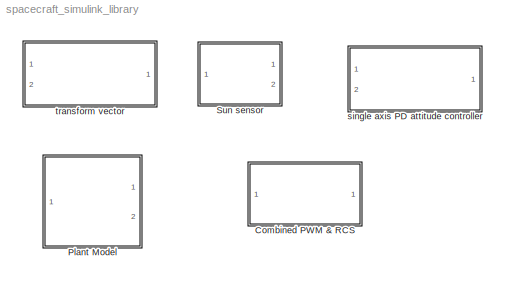
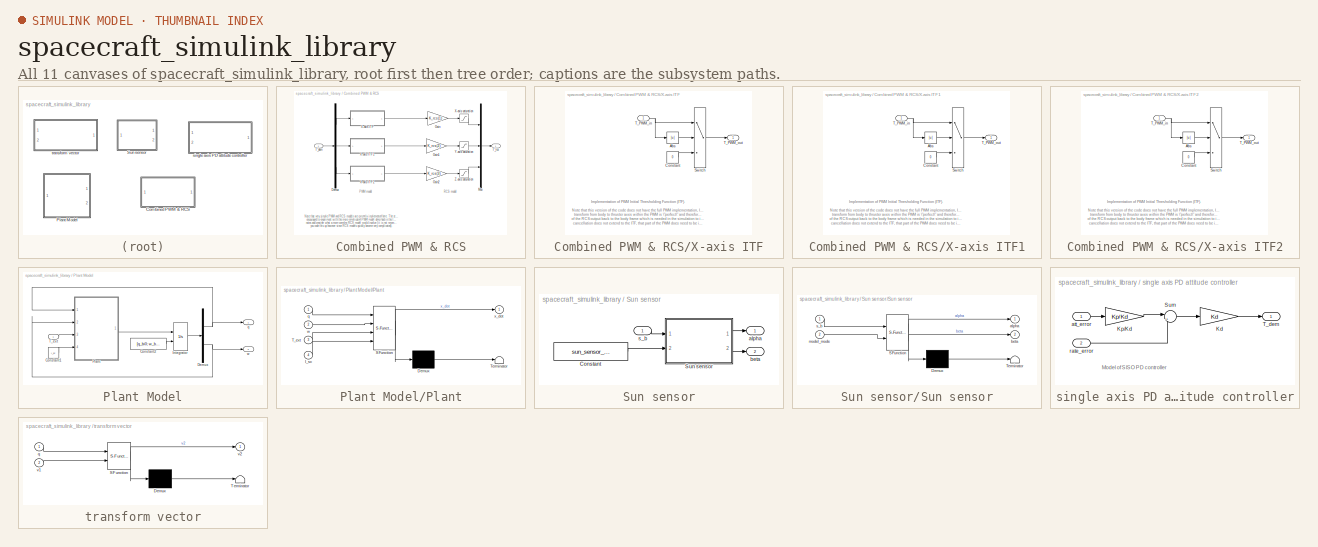
[diagram: thumbnail index - all 11 canvases of the model, root first then tree order]
MODEL spacecraft_simulink_library
KIND library
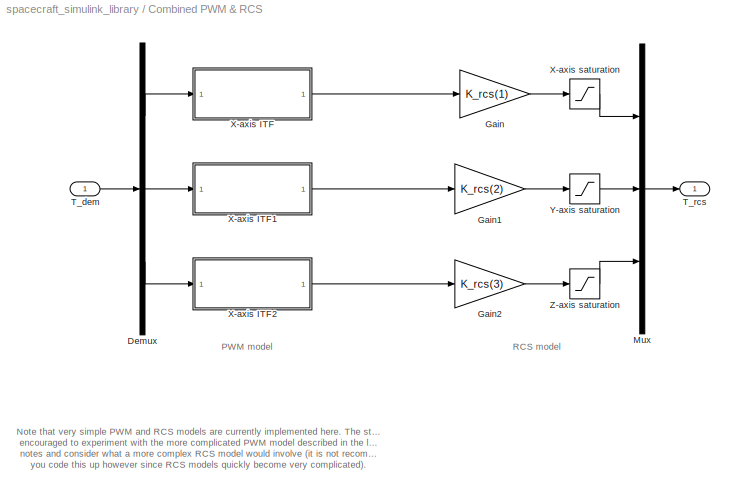
BLOCK [SubSystem] Combined PWM & RCS
  FunctionWithSeparateData = off
  MaskCallbackString = ||
  MaskEnableString = on,on,on
  MaskIconFrame = on
  MaskIconOpaque = on
  MaskIconRotate = none
  MaskIconUnits = autoscale
  MaskPromptString = Torque deadbands [X Y Z] [Nm]|Torque saturation [X Y Z] [Nm]|RCS gain [X Y Z]
  MaskStyleString = edit,edit,edit
  MaskTabNameString = ,,
  MaskToolTipString = on,on,on
  MaskTunableValueString = on,on,on
  MaskValueString = [0 0 0]|Trcs_saturation|[Krcs Krcs Krcs]
  MaskVarAliasString = ,,
  MaskVariables = T_deadband=@1;T_saturation=@2;K_rcs=@3;
  MaskVisibilityString = on,on,on
  MinAlgLoopOccurrences = off
  Ports = [1, 1]
  RTWSystemCode = Auto
BLOCK [Demux] Combined PWM & RCS/Demux
  Outputs = 3
  Ports = [1, 3]
BLOCK [Gain] Combined PWM & RCS/Gain
  Gain = K_rcs(1)
  OutDataType = sfix(16)
  OutScaling = 2^0
  ParameterDataType = sfix(16)
  ParameterScaling = 2^0
BLOCK [Gain] Combined PWM & RCS/Gain1
  Gain = K_rcs(2)
  OutDataType = sfix(16)
  OutScaling = 2^0
  ParameterDataType = sfix(16)
  ParameterScaling = 2^0
BLOCK [Gain] Combined PWM & RCS/Gain2
  Gain = K_rcs(3)
  OutDataType = sfix(16)
  OutScaling = 2^0
  ParameterDataType = sfix(16)
  ParameterScaling = 2^0
BLOCK [Mux] Combined PWM & RCS/Mux
  DisplayOption = bar
  Inputs = 3
  Ports = [3, 1]
BLOCK [Inport] Combined PWM & RCS/T_dem
  IconDisplay = Port number
  OutDataType = sfix(16)
  OutScaling = 2^0
BLOCK [Outport] Combined PWM & RCS/T_rcs
  IconDisplay = Port number
BLOCK [SubSystem] Combined PWM & RCS/X-axis ITF
  FunctionWithSeparateData = off
  MaskEnableString = on
  MaskIconFrame = on
  MaskIconOpaque = on
  MaskIconRotate = none
  MaskIconUnits = autoscale
  MaskPromptString = Torque deadband [Nm]
  MaskStyleString = edit
  MaskToolTipString = on
  MaskTunableValueString = on
  MaskValueString = T_deadband(1)
  MaskVariables = T_db=@1;
  MaskVisibilityString = on
  MinAlgLoopOccurrences = off
  Ports = [1, 1]
  RTWSystemCode = Auto
BLOCK [Abs] Combined PWM & RCS/X-axis ITF/Abs
BLOCK [Constant] Combined PWM & RCS/X-axis ITF/Constant
  OutDataType = sfix(16)
  OutScaling = 2^0
  Value = 0
BLOCK [Switch] Combined PWM & RCS/X-axis ITF/Switch
  InputSameDT = off
  Threshold = T_db
BLOCK [Inport] Combined PWM & RCS/X-axis ITF/T_PWM_in
  IconDisplay = Port number
  OutDataType = sfix(16)
  OutScaling = 2^0
BLOCK [Outport] Combined PWM & RCS/X-axis ITF/T_PWM_out
  IconDisplay = Port number
BLOCK [SubSystem] Combined PWM & RCS/X-axis ITF1
  FunctionWithSeparateData = off
  MaskEnableString = on
  MaskIconFrame = on
  MaskIconOpaque = on
  MaskIconRotate = none
  MaskIconUnits = autoscale
  MaskPromptString = Torque deadband [Nm]
  MaskStyleString = edit
  MaskToolTipString = on
  MaskTunableValueString = on
  MaskValueString = T_deadband(2)
  MaskVariables = T_db=@1;
  MaskVisibilityString = on
  MinAlgLoopOccurrences = off
  Ports = [1, 1]
  RTWSystemCode = Auto
BLOCK [Abs] Combined PWM & RCS/X-axis ITF1/Abs
BLOCK [Constant] Combined PWM & RCS/X-axis ITF1/Constant
  OutDataType = sfix(16)
  OutScaling = 2^0
  Value = 0
BLOCK [Switch] Combined PWM & RCS/X-axis ITF1/Switch
  InputSameDT = off
  Threshold = T_db
BLOCK [Inport] Combined PWM & RCS/X-axis ITF1/T_PWM_in
  IconDisplay = Port number
  OutDataType = sfix(16)
  OutScaling = 2^0
BLOCK [Outport] Combined PWM & RCS/X-axis ITF1/T_PWM_out
  IconDisplay = Port number
BLOCK [SubSystem] Combined PWM & RCS/X-axis ITF2
  FunctionWithSeparateData = off
  MaskEnableString = on
  MaskIconFrame = on
  MaskIconOpaque = on
  MaskIconRotate = none
  MaskIconUnits = autoscale
  MaskPromptString = Torque deadband [Nm]
  MaskStyleString = edit
  MaskToolTipString = on
  MaskTunableValueString = on
  MaskValueString = T_deadband(3)
  MaskVariables = T_db=@1;
  MaskVisibilityString = on
  MinAlgLoopOccurrences = off
  Ports = [1, 1]
  RTWSystemCode = Auto
BLOCK [Abs] Combined PWM & RCS/X-axis ITF2/Abs
BLOCK [Constant] Combined PWM & RCS/X-axis ITF2/Constant
  OutDataType = sfix(16)
  OutScaling = 2^0
  Value = 0
BLOCK [Switch] Combined PWM & RCS/X-axis ITF2/Switch
  InputSameDT = off
  Threshold = T_db
BLOCK [Inport] Combined PWM & RCS/X-axis ITF2/T_PWM_in
  IconDisplay = Port number
  OutDataType = sfix(16)
  OutScaling = 2^0
BLOCK [Outport] Combined PWM & RCS/X-axis ITF2/T_PWM_out
  IconDisplay = Port number
BLOCK [Saturate] Combined PWM & RCS/X-axis saturation
  LowerLimit = -T_saturation(1)
  UpperLimit = +T_saturation(1)
BLOCK [Saturate] Combined PWM & RCS/Y-axis saturation
  LowerLimit = -T_saturation(2)
  UpperLimit = T_saturation(2)
BLOCK [Saturate] Combined PWM & RCS/Z-axis saturation
  LowerLimit = -T_saturation(3)
  UpperLimit = T_saturation(3)
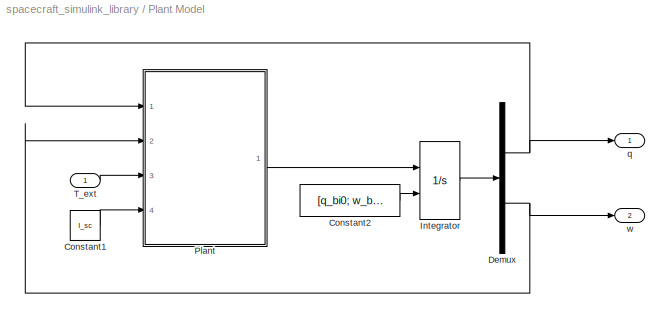
BLOCK [SubSystem] Plant Model
  FunctionWithSeparateData = off
  MinAlgLoopOccurrences = off
  Ports = [1, 2]
  RTWSystemCode = Auto
BLOCK [Constant] Plant Model/Constant1
  OutDataType = sfix(16)
  OutScaling = 2^0
  Value = I_sc
BLOCK [Constant] Plant Model/Constant2
  OutDataType = sfix(16)
  OutScaling = 2^0
  Value = [q_bi0; w_bi0]
BLOCK [Demux] Plant Model/Demux
  DisplayOption = bar
  Outputs = [4 3]
  Ports = [1, 2]
BLOCK [Integrator] Plant Model/Integrator
  InitialConditionSource = external
  Ports = [2, 1]
BLOCK [SubSystem] Plant Model/Plant
  FunctionWithSeparateData = off
  MaskDescription = Embedded MATLAB block
  MaskDisplay = disp('fcn');
  MaskIconFrame = on
  MaskIconOpaque = off
  MaskIconRotate = none
  MaskIconUnits = autoscale
  MaskSelfModifiable = on
  MaskType = Stateflow
  MinAlgLoopOccurrences = off
  PermitHierarchicalResolution = ExplicitOnly
  Ports = [4, 1]
  RTWSystemCode = Auto
BLOCK [Demux] Plant Model/Plant/ Demux 
  Outputs = 1
  Ports = [1, 1]
BLOCK [S-Function] Plant Model/Plant/ SFunction 
  EnableBusSupport = on
  FunctionName = sf_sfun
  PortCounts = [4 2]
  Ports = [4, 2]
  Tag = Stateflow S-Function spacecraft_simulink_library 2
BLOCK [Terminator] Plant Model/Plant/ Terminator 
BLOCK [Inport] Plant Model/Plant/I_sc
  IconDisplay = Port number
  Port = 4
BLOCK [Inport] Plant Model/Plant/T_ext
  IconDisplay = Port number
  Port = 3
BLOCK [Inport] Plant Model/Plant/q
  IconDisplay = Port number
  OutDataType = sfix(16)
  OutScaling = 2^0
BLOCK [Inport] Plant Model/Plant/w
  IconDisplay = Port number
  Port = 2
BLOCK [Outport] Plant Model/Plant/x_dot
  IconDisplay = Port number
  OutDataType = sfix(16)
  OutScaling = 2^0
BLOCK [Inport] Plant Model/T_ext
  IconDisplay = Port number
BLOCK [Outport] Plant Model/q
  IconDisplay = Port number
BLOCK [Outport] Plant Model/w
  IconDisplay = Port number
  Port = 2
BLOCK [SubSystem] Sun sensor
  FunctionWithSeparateData = off
  MinAlgLoopOccurrences = off
  Ports = [1, 2]
  RTWSystemCode = Auto
BLOCK [Constant] Sun sensor/Constant
  OutDataType = sfix(16)
  OutScaling = 2^0
  Value = sun_sensor_model_type
BLOCK [SubSystem] Sun sensor/Sun sensor
  FunctionWithSeparateData = off
  MaskDescription = Embedded MATLAB block
  MaskDisplay = disp('SunSensor');
  MaskIconFrame = on
  MaskIconOpaque = off
  MaskIconRotate = none
  MaskIconUnits = autoscale
  MaskSelfModifiable = on
  MaskType = Stateflow
  MinAlgLoopOccurrences = off
  PermitHierarchicalResolution = ExplicitOnly
  Ports = [2, 2]
  RTWSystemCode = Auto
BLOCK [Demux] Sun sensor/Sun sensor/ Demux 
  Outputs = 1
  Ports = [1, 1]
BLOCK [S-Function] Sun sensor/Sun sensor/ SFunction 
  FunctionName = sf_sfun
  PortCounts = [2 3]
  Ports = [2, 3]
  Tag = Stateflow S-Function spacecraft_simulink_library 1
BLOCK [Terminator] Sun sensor/Sun sensor/ Terminator 
BLOCK [Outport] Sun sensor/Sun sensor/alpha
  IconDisplay = Port number
  OutDataType = sfix(16)
  OutScaling = 2^0
BLOCK [Outport] Sun sensor/Sun sensor/beta
  IconDisplay = Port number
  Port = 2
BLOCK [Inport] Sun sensor/Sun sensor/model_mode
  IconDisplay = Port number
  Port = 2
BLOCK [Inport] Sun sensor/Sun sensor/s_b
  IconDisplay = Port number
  OutDataType = sfix(16)
  OutScaling = 2^0
BLOCK [Outport] Sun sensor/alpha
  IconDisplay = Port number
BLOCK [Outport] Sun sensor/beta
  IconDisplay = Port number
  Port = 2
BLOCK [Inport] Sun sensor/s_b
  IconDisplay = Port number
BLOCK [SubSystem] single axis PD attitude controller
  FunctionWithSeparateData = off
  MaskCallbackString = |
  MaskEnableString = on,on
  MaskIconFrame = on
  MaskIconOpaque = on
  MaskIconRotate = none
  MaskIconUnits = autoscale
  MaskPromptString = Proportional gain Kp|Derivative gain Kd
  MaskStyleString = edit,edit
  MaskTabNameString = ,
  MaskToolTipString = on,on
  MaskTunableValueString = on,on
  MaskValueString = 0|0
  MaskVarAliasString = ,
  MaskVariables = Kp=@1;Kd=@2;
  MaskVisibilityString = on,on
  MinAlgLoopOccurrences = off
  Ports = [2, 1]
  RTWSystemCode = Auto
BLOCK [Gain] single axis PD attitude controller/Kd
  Gain = Kd
  OutDataType = sfix(16)
  OutScaling = 2^0
  ParameterDataType = sfix(16)
  ParameterScaling = 2^0
BLOCK [Gain] single axis PD attitude controller/Kp//Kd
  Gain = Kp/Kd
  OutDataType = sfix(16)
  OutScaling = 2^0
  ParameterDataType = sfix(16)
  ParameterScaling = 2^0
BLOCK [Sum] single axis PD attitude controller/Sum
  CollapseMode = All dimensions
  IconShape = round
  InputSameDT = off
  Inputs = |++
  OutDataType = sfix(16)
  OutDataTypeMode = Inherit via internal rule
  OutScaling = 2^0
  Ports = [2, 1]
BLOCK [Outport] single axis PD attitude controller/T_dem
  IconDisplay = Port number
BLOCK [Inport] single axis PD attitude controller/att_error
  IconDisplay = Port number
  OutDataType = sfix(16)
  OutScaling = 2^0
BLOCK [Inport] single axis PD attitude controller/rate_error
  IconDisplay = Port number
  OutDataType = sfix(16)
  OutScaling = 2^0
  Port = 2
BLOCK [SubSystem] transform vector
  FunctionWithSeparateData = off
  MaskDescription = Embedded MATLAB block
  MaskDisplay = disp('TransformVector');
  MaskIconFrame = on
  MaskIconOpaque = off
  MaskIconRotate = none
  MaskIconUnits = autoscale
  MaskSelfModifiable = on
  MaskType = Stateflow
  MinAlgLoopOccurrences = off
  PermitHierarchicalResolution = ExplicitOnly
  Ports = [2, 1]
  RTWSystemCode = Auto
BLOCK [Demux] transform vector/ Demux 
  Outputs = 1
  Ports = [1, 1]
BLOCK [S-Function] transform vector/ SFunction 
  FunctionName = sf_sfun
  PortCounts = [2 2]
  Ports = [2, 2]
  Tag = Stateflow S-Function spacecraft_simulink_library 3
BLOCK [Terminator] transform vector/ Terminator 
BLOCK [Inport] transform vector/q
  IconDisplay = Port number
  OutDataType = sfix(16)
  OutScaling = 2^0
BLOCK [Inport] transform vector/v1
  IconDisplay = Port number
  Port = 2
BLOCK [Outport] transform vector/v2
  IconDisplay = Port number
  OutDataType = sfix(16)
  OutScaling = 2^0
ANNOTATION Combined PWM & RCS: Note that very simple PWM and RCS models are currently implemented here. The student is\nencouraged to experiment with the more complicated PWM model described in the lecture \nnotes and consider what a more complex RCS model would involve (it is not recommended\nyou code this up however since RCS models quickly become very complicated).
ANNOTATION Combined PWM & RCS: PWM model
ANNOTATION Combined PWM & RCS: RCS model
ANNOTATION Combined PWM & RCS/X-axis ITF: Implementation of PWM Initial Thresholding Function (ITF). \n\nNote that this version of the code does not have the full PWM implementation, Instead, the implicit assumption is the \ntransform from body to thruster axes within the PWM is \"perfect\" and therefore cancels out with the subsequent transform\nof the RCS output back to the body frame which is needed in the simulation to interface with ...<+236ch>
ANNOTATION Combined PWM & RCS/X-axis ITF1: Implementation of PWM Initial Thresholding Function (ITF). \n\nNote that this version of the code does not have the full PWM implementation, Instead, the implicit assumption is the \ntransform from body to thruster axes within the PWM is \"perfect\" and therefore cancels out with the subsequent transform\nof the RCS output back to the body frame which is needed in the simulation to interface with ...<+236ch>
ANNOTATION Combined PWM & RCS/X-axis ITF2: Implementation of PWM Initial Thresholding Function (ITF). \n\nNote that this version of the code does not have the full PWM implementation, Instead, the implicit assumption is the \ntransform from body to thruster axes within the PWM is \"perfect\" and therefore cancels out with the subsequent transform\nof the RCS output back to the body frame which is needed in the simulation to interface with ...<+236ch>
ANNOTATION single axis PD attitude controller: Model of SISO PD controller\n
LINE Combined PWM & RCS/Demux:1 -> Combined PWM & RCS/X-axis ITF:1
LINE Combined PWM & RCS/Demux:2 -> Combined PWM & RCS/X-axis ITF1:1
LINE Combined PWM & RCS/Demux:3 -> Combined PWM & RCS/X-axis ITF2:1
LINE Combined PWM & RCS/Gain1:1 -> Combined PWM & RCS/Y-axis saturation:1
LINE Combined PWM & RCS/Gain2:1 -> Combined PWM & RCS/Z-axis saturation:1
LINE Combined PWM & RCS/Gain:1 -> Combined PWM & RCS/X-axis saturation:1
LINE Combined PWM & RCS/Mux:1 -> Combined PWM & RCS/T_rcs:1
LINE Combined PWM & RCS/T_dem:1 -> Combined PWM & RCS/Demux:1
LINE Combined PWM & RCS/X-axis ITF/Abs:1 -> Combined PWM & RCS/X-axis ITF/Switch:2
LINE Combined PWM & RCS/X-axis ITF/Constant:1 -> Combined PWM & RCS/X-axis ITF/Switch:3
LINE Combined PWM & RCS/X-axis ITF/Switch:1 -> Combined PWM & RCS/X-axis ITF/T_PWM_out:1
NET Combined PWM & RCS/X-axis ITF/T_PWM_in:1 -> Combined PWM & RCS/X-axis ITF/Abs:1, Combined PWM & RCS/X-axis ITF/Switch:1
LINE Combined PWM & RCS/X-axis ITF1/Abs:1 -> Combined PWM & RCS/X-axis ITF1/Switch:2
LINE Combined PWM & RCS/X-axis ITF1/Constant:1 -> Combined PWM & RCS/X-axis ITF1/Switch:3
LINE Combined PWM & RCS/X-axis ITF1/Switch:1 -> Combined PWM & RCS/X-axis ITF1/T_PWM_out:1
NET Combined PWM & RCS/X-axis ITF1/T_PWM_in:1 -> Combined PWM & RCS/X-axis ITF1/Abs:1, Combined PWM & RCS/X-axis ITF1/Switch:1
LINE Combined PWM & RCS/X-axis ITF1:1 -> Combined PWM & RCS/Gain1:1
LINE Combined PWM & RCS/X-axis ITF2/Abs:1 -> Combined PWM & RCS/X-axis ITF2/Switch:2
LINE Combined PWM & RCS/X-axis ITF2/Constant:1 -> Combined PWM & RCS/X-axis ITF2/Switch:3
LINE Combined PWM & RCS/X-axis ITF2/Switch:1 -> Combined PWM & RCS/X-axis ITF2/T_PWM_out:1
NET Combined PWM & RCS/X-axis ITF2/T_PWM_in:1 -> Combined PWM & RCS/X-axis ITF2/Abs:1, Combined PWM & RCS/X-axis ITF2/Switch:1
LINE Combined PWM & RCS/X-axis ITF2:1 -> Combined PWM & RCS/Gain2:1
LINE Combined PWM & RCS/X-axis ITF:1 -> Combined PWM & RCS/Gain:1
LINE Combined PWM & RCS/X-axis saturation:1 -> Combined PWM & RCS/Mux:1
LINE Combined PWM & RCS/Y-axis saturation:1 -> Combined PWM & RCS/Mux:2
LINE Combined PWM & RCS/Z-axis saturation:1 -> Combined PWM & RCS/Mux:3
LINE Plant Model/Constant1:1 -> Plant Model/Plant:4
LINE Plant Model/Constant2:1 -> Plant Model/Integrator:2
NET Plant Model/Demux:1 -> Plant Model/Plant:1, Plant Model/q:1
NET Plant Model/Demux:2 -> Plant Model/Plant:2, Plant Model/w:1
LINE Plant Model/Integrator:1 -> Plant Model/Demux:1
LINE Plant Model/Plant/ Demux :1 -> Plant Model/Plant/ Terminator :1
LINE Plant Model/Plant/ SFunction :1 -> Plant Model/Plant/ Demux :1
LINE Plant Model/Plant/ SFunction :2 -> Plant Model/Plant/x_dot:1
LINE Plant Model/Plant/I_sc:1 -> Plant Model/Plant/ SFunction :4
LINE Plant Model/Plant/T_ext:1 -> Plant Model/Plant/ SFunction :3
LINE Plant Model/Plant/q:1 -> Plant Model/Plant/ SFunction :1
LINE Plant Model/Plant/w:1 -> Plant Model/Plant/ SFunction :2
LINE Plant Model/Plant:1 -> Plant Model/Integrator:1
LINE Plant Model/T_ext:1 -> Plant Model/Plant:3
LINE Sun sensor/Constant:1 -> Sun sensor/Sun sensor:2
LINE Sun sensor/Sun sensor/ Demux :1 -> Sun sensor/Sun sensor/ Terminator :1
LINE Sun sensor/Sun sensor/ SFunction :1 -> Sun sensor/Sun sensor/ Demux :1
LINE Sun sensor/Sun sensor/ SFunction :2 -> Sun sensor/Sun sensor/alpha:1
LINE Sun sensor/Sun sensor/ SFunction :3 -> Sun sensor/Sun sensor/beta:1
LINE Sun sensor/Sun sensor/model_mode:1 -> Sun sensor/Sun sensor/ SFunction :2
LINE Sun sensor/Sun sensor/s_b:1 -> Sun sensor/Sun sensor/ SFunction :1
LINE Sun sensor/Sun sensor:1 -> Sun sensor/alpha:1
LINE Sun sensor/Sun sensor:2 -> Sun sensor/beta:1
LINE Sun sensor/s_b:1 -> Sun sensor/Sun sensor:1
LINE single axis PD attitude controller/Kd:1 -> single axis PD attitude controller/T_dem:1
LINE single axis PD attitude controller/Kp//Kd:1 -> single axis PD attitude controller/Sum:1
LINE single axis PD attitude controller/Sum:1 -> single axis PD attitude controller/Kd:1
LINE single axis PD attitude controller/att_error:1 -> single axis PD attitude controller/Kp//Kd:1
LINE single axis PD attitude controller/rate_error:1 -> single axis PD attitude controller/Sum:2
LINE transform vector/ Demux :1 -> transform vector/ Terminator :1
LINE transform vector/ SFunction :1 -> transform vector/ Demux :1
LINE transform vector/ SFunction :2 -> transform vector/v2:1
LINE transform vector/q:1 -> transform vector/ SFunction :1
LINE transform vector/v1:1 -> transform vector/ SFunction :2
note: NET lines group one-source signal fan-out (src -> all destinations, sorted); 1:1 wires keep LINE
CHART Sun sensor/Sun sensor states=1 transitions=1
  STATE_LABEL 'eML_blk_kernel()'
CHART Plant Model/Plant states=1 transitions=1
  STATE_LABEL 'eML_blk_kernel()'
CHART transform vector states=1 transitions=1
  STATE_LABEL 'eML_blk_kernel()'
